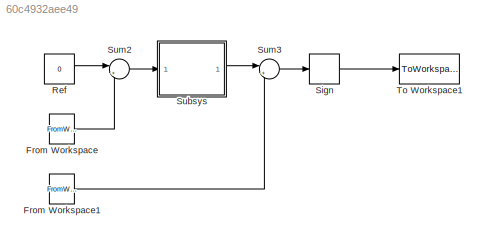
MODEL slx_60c4932aee49
KIND model
CONFIG AbsTol = auto
CONFIG FixedStep = auto
CONFIG MaxStep = auto
CONFIG MinStep = auto
CONFIG RelTol = 1e-3
CONFIG SampleTimeConstraint = Unconstrained
CONFIG Solver = ode45
CONFIG SolverMode = Auto
CONFIG SolverName = ode45
CONFIG StartTime = 0.0
CONFIG StopTime = 10.0
BLOCK [FromWorkspace] From Workspace
  VariableName = y
  ZeroCross = on
BLOCK [FromWorkspace] From Workspace1
  VariableName = dy
  ZeroCross = on
BLOCK [Constant] Ref
  Value = 0
  VectorParams1D = off
BLOCK [Signum] Sign
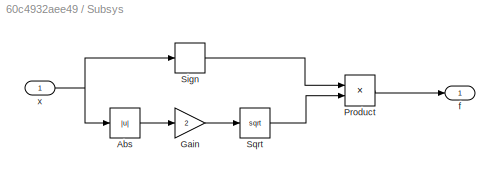
BLOCK [SubSystem] Subsys 
  Ports = [1, 1]
  RequestExecContextInheritance = off
BLOCK [Abs] Subsys /Abs
  SaturateOnIntegerOverflow = off
BLOCK [Gain] Subsys /Gain
  Gain = 2
  OutDataTypeStr = Inherit: Inherit via internal rule
  ParamDataTypeStr = Inherit: Inherit via internal rule
  SaturateOnIntegerOverflow = off
BLOCK [Product] Subsys /Product
  InputSameDT = off
  OutDataTypeStr = Inherit: Inherit via internal rule
  Ports = [2, 1]
  RndMeth = Floor
  SaturateOnIntegerOverflow = off
BLOCK [Signum] Subsys /Sign
BLOCK [Sqrt] Subsys /Sqrt
BLOCK [Outport] Subsys /f 
  IconDisplay = Port number
BLOCK [Inport] Subsys /x
  IconDisplay = Port number
BLOCK [Sum] Sum2
  IconShape = round
  InputSameDT = off
  Inputs = |+-
  OutDataTypeStr = Inherit: Inherit via internal rule
  Ports = [2, 1]
  SaturateOnIntegerOverflow = off
BLOCK [Sum] Sum3
  IconShape = round
  InputSameDT = off
  Inputs = |+-
  OutDataTypeStr = Inherit: Inherit via internal rule
  Ports = [2, 1]
  SaturateOnIntegerOverflow = off
BLOCK [ToWorkspace] To Workspace1
  MaxDataPoints = inf
  Ports = [1]
  SampleTime = -1
  VariableName = u
LINE From Workspace1:1 -> Sum3:2
LINE From Workspace:1 -> Sum2:2
LINE Ref:1 -> Sum2:1
LINE Sign:1 -> To Workspace1:1
LINE Subsys /Abs:1 -> Subsys /Gain:1
LINE Subsys /Gain:1 -> Subsys /Sqrt:1
LINE Subsys /Product:1 -> Subsys /f :1
LINE Subsys /Sign:1 -> Subsys /Product:1
LINE Subsys /Sqrt:1 -> Subsys /Product:2
NET Subsys /x:1 -> Subsys /Abs:1, Subsys /Sign:1
LINE Subsys :1 -> Sum3:1
LINE Sum2:1 -> Subsys :1
LINE Sum3:1 -> Sign:1
note: NET lines group one-source signal fan-out (src -> all destinations, sorted); 1:1 wires keep LINE
